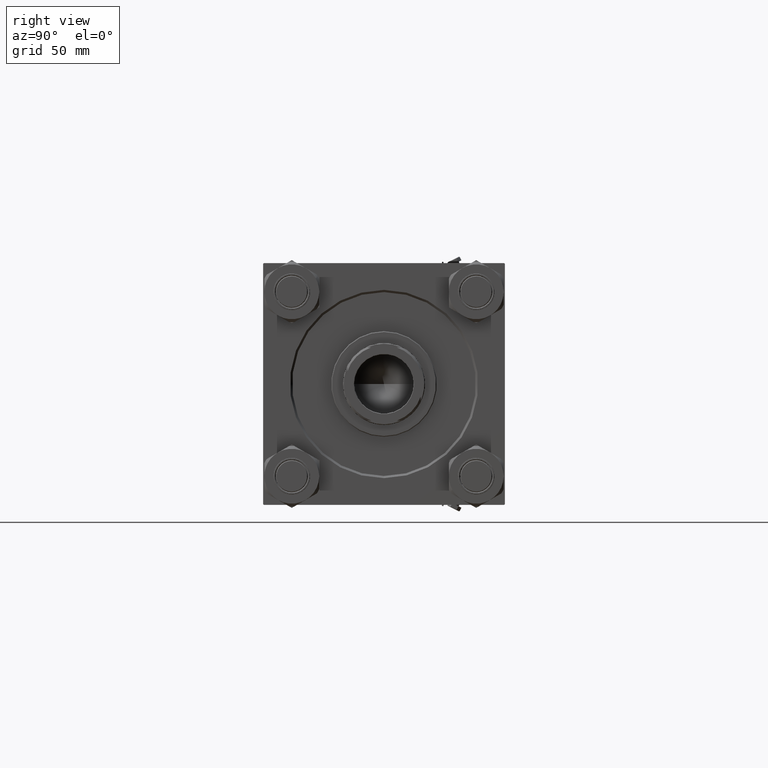
[diagram: clean part render]
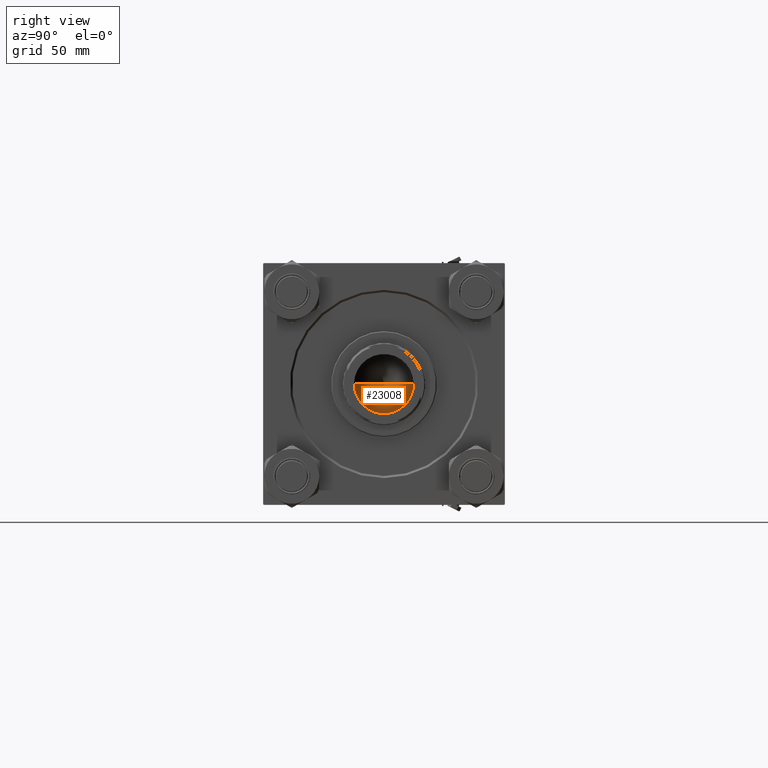
[diagram: same view with one face highlighted and labeled with its STEP entity id]
A machine part, right view. The second image highlights one B-rep face of the part: STEP entity #23008.
In plain terms, the highlighted conical surface has half-angle 59 deg.
Its self-contained STEP definition (entity closure, byte-faithful):
#1738 = CIRCLE ( 'NONE', #4220, 20.24999999999998934 ) ;
#3039 = EDGE_CURVE ( 'NONE', #32939, #31702, #1738, .T. ) ;
#4220 = AXIS2_PLACEMENT_3D ( 'NONE', #9551, #6149, #25675 ) ;
#6149 = DIRECTION ( 'NONE',  ( -0.000000000000000000, -0.000000000000000000, 1.000000000000000000 ) ) ;
#7954 = CARTESIAN_POINT ( 'NONE',  ( 20.24999999999998934, 0.000000000000000000, 241.0000000000000568 ) ) ;
#9551 = CARTESIAN_POINT ( 'NONE',  ( 0.000000000000000000, 0.000000000000000000, 241.0000000000000568 ) ) ;
#12254 = EDGE_CURVE ( 'NONE', #28333, #31702, #28340, .T. ) ;
#15627 = CONICAL_SURFACE ( 'NONE', #38026, 20.24999999999998934, 1.029744258676652313 ) ;
#15880 = DIRECTION ( 'NONE',  ( -0.8571673007021112234, 1.049727191138617340E-16, 0.5150380749100560429 ) ) ;
#18224 = DIRECTION ( 'NONE',  ( -0.000000000000000000, -0.000000000000000000, 1.000000000000000000 ) ) ;
#19558 = ORIENTED_EDGE ( 'NONE', *, *, #3039, .T. ) ;
#21351 = FACE_OUTER_BOUND ( 'NONE', #49921, .T. ) ;
#22444 = CARTESIAN_POINT ( 'NONE',  ( 20.24999999999998934, 0.000000000000000000, 241.0000000000000568 ) ) ;
#23008 = ADVANCED_FACE ( 'NONE', ( #21351 ), #15627, .F. ) ;
#24059 = DIRECTION ( 'NONE',  ( 0.8571673007021112234, 0.000000000000000000, 0.5150380749100560429 ) ) ;
#25675 = DIRECTION ( 'NONE',  ( 1.000000000000000000, 0.000000000000000000, 0.000000000000000000 ) ) ;
#28213 = LINE ( 'NONE', #7954, #34901 ) ;
#28333 = VERTEX_POINT ( 'NONE', #33591 ) ;
#28340 = LINE ( 'NONE', #44199, #31931 ) ;
#29476 = EDGE_CURVE ( 'NONE', #28333, #32939, #28213, .T. ) ;
#31702 = VERTEX_POINT ( 'NONE', #40941 ) ;
#31931 = VECTOR ( 'NONE', #15880, 1000.000000000000000 ) ;
#32939 = VERTEX_POINT ( 'NONE', #22444 ) ;
#33476 = ORIENTED_EDGE ( 'NONE', *, *, #29476, .T. ) ;
#33591 = CARTESIAN_POINT ( 'NONE',  ( -1.584115414415908206E-14, 0.000000000000000000, 228.8325724646919070 ) ) ;
#34901 = VECTOR ( 'NONE', #24059, 1000.000000000000000 ) ;
#37967 = CARTESIAN_POINT ( 'NONE',  ( 0.000000000000000000, 0.000000000000000000, 241.0000000000000568 ) ) ;
#38026 = AXIS2_PLACEMENT_3D ( 'NONE', #37967, #18224, #45526 ) ;
#40003 = ORIENTED_EDGE ( 'NONE', *, *, #12254, .F. ) ;
#40941 = CARTESIAN_POINT ( 'NONE',  ( -20.24999999999998934, 2.479909768273389117E-15, 241.0000000000000568 ) ) ;
#44199 = CARTESIAN_POINT ( 'NONE',  ( -20.24999999999998934, 2.479909768273389117E-15, 241.0000000000000568 ) ) ;
#45526 = DIRECTION ( 'NONE',  ( 1.000000000000000000, 0.000000000000000000, 0.000000000000000000 ) ) ;
#49921 = EDGE_LOOP ( 'NONE', ( #40003, #33476, #19558 ) ) ;